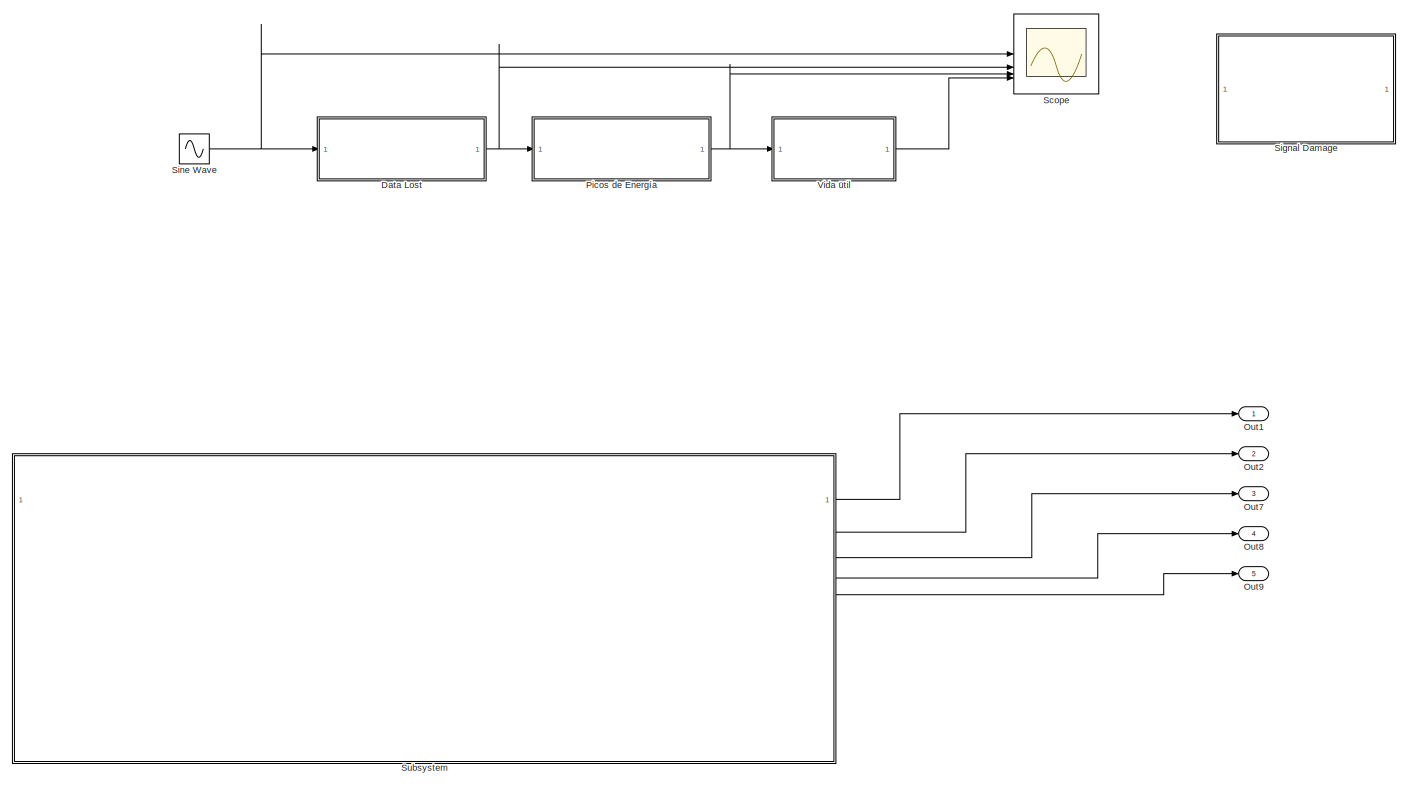
[diagram: root canvas - part 1/2, most of the canvas]
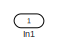
[diagram: root canvas - part 2/2, bottom left region]
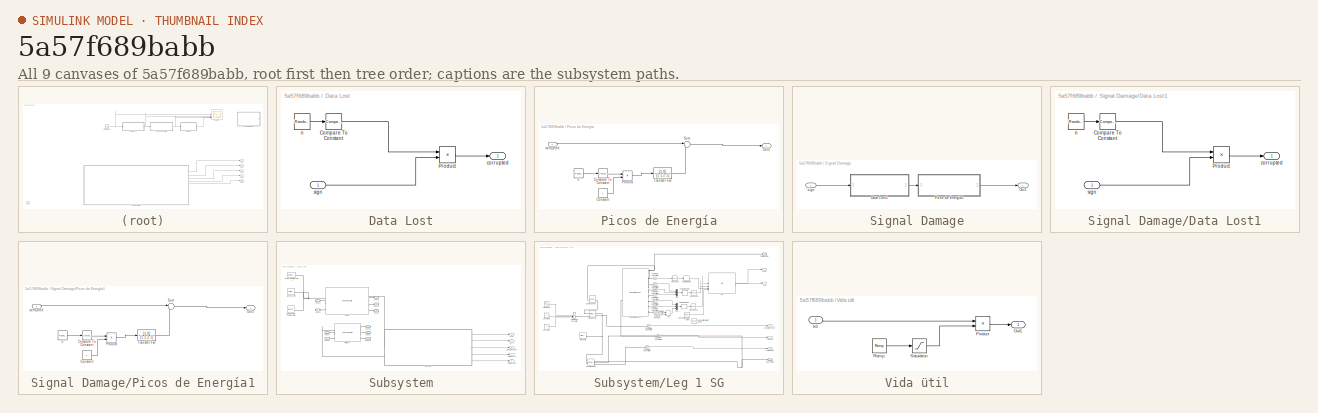
[diagram: thumbnail index - all 9 canvases of the model, root first then tree order]
MODEL mdl_5a57f689babb
KIND model
CONFIG AbsTol = auto
CONFIG EnableMultiTasking = off
CONFIG FixedStep = auto
CONFIG MaxStep = auto
CONFIG MinStep = auto
CONFIG RelTol = 1e-3
CONFIG SampleTimeConstraint = Unconstrained
CONFIG SolverName = VariableStepAuto
CONFIG StartTime = 0.0
CONFIG StopTime = 5
BLOCK [SubSystem] Data Lost
BLOCK [Reference] Data Lost/Compare To Constant  REF=simulink/Logic and Bit
Operations/Compare
To Constant
  SourceBlock = simulink/Logic and Bit\nOperations/Compare\nTo Constant
  SourceType = Compare To Constant
BLOCK [Product] Data Lost/Product
BLOCK [Outport] Data Lost/corrupted
BLOCK [RandomNumber] Data Lost/n
  SampleTime = 0.1
  Variance = 50
BLOCK [Inport] Data Lost/sign
BLOCK [Inport] In1
BLOCK [Outport] Out1
  SignalName = accel 1
BLOCK [Outport] Out2
  Port = 2
  SignalName = gyro 1
BLOCK [Outport] Out7
  Port = 3
  SignalName = lineal_encoder 1
BLOCK [Outport] Out8
  Port = 4
  SignalName = total_force 1
BLOCK [Outport] Out9
  Port = 5
  SignalName = total_torque 1
BLOCK [SubSystem] Picos de Energía
BLOCK [Reference] Picos de Energía/Compare To Constant  REF=simulink/Logic and Bit
Operations/Compare
To Constant
  SourceBlock = simulink/Logic and Bit\nOperations/Compare\nTo Constant
  SourceType = Compare To Constant
BLOCK [Constant] Picos de Energía/Constant
BLOCK [Outport] Picos de Energía/Out3
BLOCK [Product] Picos de Energía/Product
BLOCK [Sum] Picos de Energía/Sum
  Inputs = |++
BLOCK [TransferFcn] Picos de Energía/Transfer Fcn
  Denominator = [1 1.2 1]
  Numerator = [1 0]
BLOCK [Inport] Picos de Energía/corrupted
BLOCK [RandomNumber] Picos de Energía/n
  SampleTime = 0.1
  Variance = 50
BLOCK [Scope] Scope
  ActiveDisplayYMaximum = 1
  ActiveDisplayYMinimum = -1
  Floating = off
  GraphicalSettings = {"Style":{"BackgroundColor":[0.12941176470588237,0.12941176470588237,0.12941176470588237],"AxesColor":[0.07058823529411765,0.07058823529411765,0.07058823529411765],"LabelsColor":[0.8509803921568627,0.8509803921568627,0.8509803921568627],"PreserveColors":false,"Visible":[true,true,true,true],"LineStyle":["-","-","-","-"],"LineWidth":[1.5,1.5,1.5,1.5],"BarWidth":[0.9,0.9,0.9,0.9],"LineColor":["auto"...<+2398ch>
  MultipleDisplayCache = [{"MaxYLimMag":1,"MaxYLimReal":1,"MinYLimMag":0,"MinYLimReal":-1,"PlotAsMagnitudePhase":false,"ShowGrid":true,"ShowLegend":true,"Title":"%<SignalLabel>","YLabel":""}]
  NumInputPorts = 4
  ScopeFrameLocation = window
  ShowLegend = on
  WasSavedAsWebScope = on
  WindowPosition = [303.000000,177.000000,560.000000,420.000000,]
BLOCK [SubSystem] Signal Damage
BLOCK [SubSystem] Signal Damage/Data Lost1
BLOCK [Reference] Signal Damage/Data Lost1/Compare To Constant  REF=simulink/Logic and Bit
Operations/Compare
To Constant
  SourceBlock = simulink/Logic and Bit\nOperations/Compare\nTo Constant
  SourceType = Compare To Constant
BLOCK [Product] Signal Damage/Data Lost1/Product
BLOCK [Outport] Signal Damage/Data Lost1/corrupted
BLOCK [RandomNumber] Signal Damage/Data Lost1/n
  SampleTime = 0.1
  Variance = 50
BLOCK [Inport] Signal Damage/Data Lost1/sign
BLOCK [Outport] Signal Damage/Out1
BLOCK [SubSystem] Signal Damage/Picos de Energía1
BLOCK [Reference] Signal Damage/Picos de Energía1/Compare To Constant  REF=simulink/Logic and Bit
Operations/Compare
To Constant
  SourceBlock = simulink/Logic and Bit\nOperations/Compare\nTo Constant
  SourceType = Compare To Constant
BLOCK [Constant] Signal Damage/Picos de Energía1/Constant
BLOCK [Outport] Signal Damage/Picos de Energía1/Out3
BLOCK [Product] Signal Damage/Picos de Energía1/Product
BLOCK [Sum] Signal Damage/Picos de Energía1/Sum
  Inputs = |++
BLOCK [TransferFcn] Signal Damage/Picos de Energía1/Transfer Fcn
  Denominator = [1 1.2 1]
  Numerator = [1 0]
BLOCK [Inport] Signal Damage/Picos de Energía1/corrupted
BLOCK [RandomNumber] Signal Damage/Picos de Energía1/n
  SampleTime = 0.1
  Variance = 50
BLOCK [Inport] Signal Damage/sign
BLOCK [Sin] Sine Wave
  SampleTime = 0
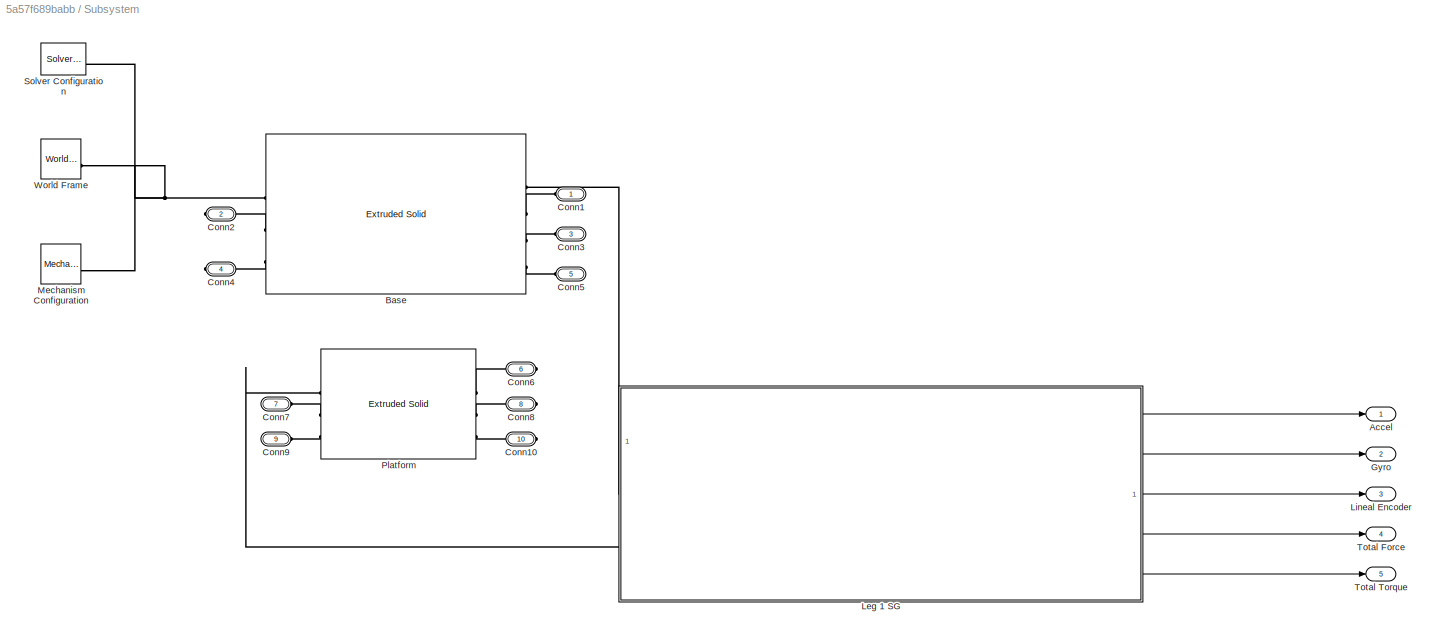
BLOCK [SubSystem] Subsystem
BLOCK [Outport] Subsystem/Accel
BLOCK [Reference] Subsystem/Base  REF=sm_lib/Body Elements/Extruded Solid
  SourceBlock = sm_lib/Body Elements/Extruded Solid
  SourceType = Extruded Solid
BLOCK [PMIOPort] Subsystem/Conn1
  Side = Left
BLOCK [PMIOPort] Subsystem/Conn10
  Port = 10
  Side = Right
BLOCK [PMIOPort] Subsystem/Conn2
  Port = 2
  Side = Right
BLOCK [PMIOPort] Subsystem/Conn3
  Port = 3
  Side = Left
BLOCK [PMIOPort] Subsystem/Conn4
  Port = 4
  Side = Right
BLOCK [PMIOPort] Subsystem/Conn5
  Port = 5
  Side = Left
BLOCK [PMIOPort] Subsystem/Conn6
  Port = 6
  Side = Right
BLOCK [PMIOPort] Subsystem/Conn7
  Port = 7
  Side = Left
BLOCK [PMIOPort] Subsystem/Conn8
  Port = 8
  Side = Right
BLOCK [PMIOPort] Subsystem/Conn9
  Port = 9
  Side = Left
BLOCK [Outport] Subsystem/Gyro
  Port = 2
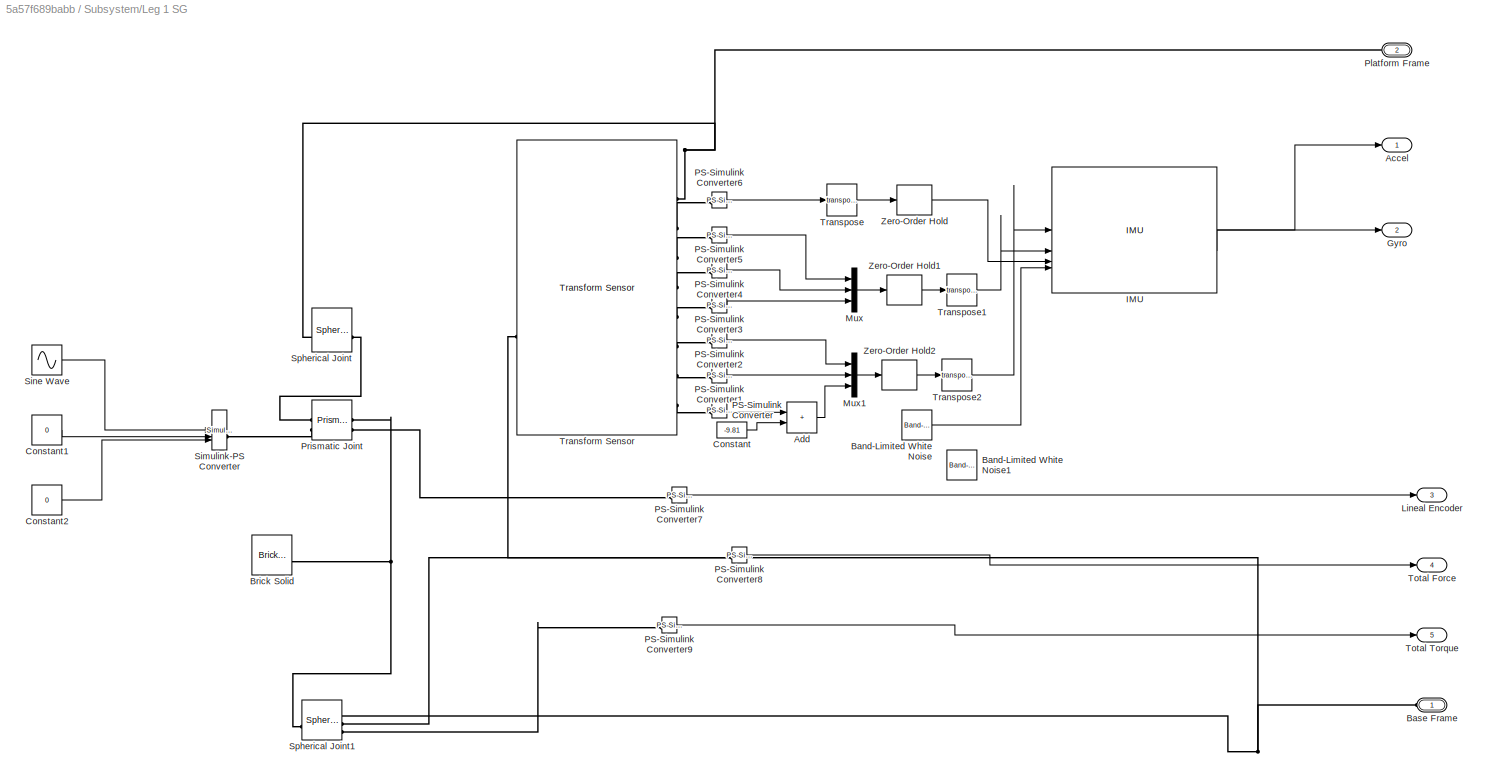
BLOCK [SubSystem] Subsystem/Leg 1 SG
BLOCK [Outport] Subsystem/Leg 1 SG/Accel
BLOCK [Sum] Subsystem/Leg 1 SG/Add
  IconShape = rectangular
BLOCK [Reference] Subsystem/Leg 1 SG/Band-Limited White Noise  REF=simulink/Sources/Band-Limited
White Noise
  SourceBlock = simulink/Sources/Band-Limited\nWhite Noise
  SourceType = Band-Limited White Noise.
BLOCK [Reference] Subsystem/Leg 1 SG/Band-Limited White Noise1  REF=simulink/Sources/Band-Limited
White Noise
  SourceBlock = simulink/Sources/Band-Limited\nWhite Noise
  SourceType = Band-Limited White Noise.
BLOCK [PMIOPort] Subsystem/Leg 1 SG/Base Frame
  NameLocation = top
  Side = Left
BLOCK [Reference] Subsystem/Leg 1 SG/Brick Solid  REF=sm_lib/Body Elements/Brick Solid
  SourceBlock = sm_lib/Body Elements/Brick Solid
  SourceType = Brick Solid
BLOCK [Constant] Subsystem/Leg 1 SG/Constant
  Value = -9.81
BLOCK [Constant] Subsystem/Leg 1 SG/Constant1
  Value = 0
BLOCK [Constant] Subsystem/Leg 1 SG/Constant2
  Value = 0
BLOCK [Outport] Subsystem/Leg 1 SG/Gyro
  Port = 2
BLOCK [Reference] Subsystem/Leg 1 SG/IMU  REF=mspsensorlib/IMU
  SourceBlock = mspsensorlib/IMU
  SourceType = fusion.simulink.imuSensor
BLOCK [Outport] Subsystem/Leg 1 SG/Lineal Encoder
  Port = 3
BLOCK [Mux] Subsystem/Leg 1 SG/Mux
  DisplayOption = bar
  Inputs = 3
BLOCK [Mux] Subsystem/Leg 1 SG/Mux1
  DisplayOption = bar
  Inputs = 3
BLOCK [Reference] Subsystem/Leg 1 SG/PS-Simulink Converter  REF=nesl_utility/PS-Simulink
Converter
  SourceBlock = nesl_utility/PS-Simulink\nConverter
  SourceType = PS-Simulink\nConverter
BLOCK [Reference] Subsystem/Leg 1 SG/PS-Simulink Converter1  REF=nesl_utility/PS-Simulink
Converter
  SourceBlock = nesl_utility/PS-Simulink\nConverter
  SourceType = PS-Simulink\nConverter
BLOCK [Reference] Subsystem/Leg 1 SG/PS-Simulink Converter2  REF=nesl_utility/PS-Simulink
Converter
  SourceBlock = nesl_utility/PS-Simulink\nConverter
  SourceType = PS-Simulink\nConverter
BLOCK [Reference] Subsystem/Leg 1 SG/PS-Simulink Converter3  REF=nesl_utility/PS-Simulink
Converter
  SourceBlock = nesl_utility/PS-Simulink\nConverter
  SourceType = PS-Simulink\nConverter
BLOCK [Reference] Subsystem/Leg 1 SG/PS-Simulink Converter4  REF=nesl_utility/PS-Simulink
Converter
  SourceBlock = nesl_utility/PS-Simulink\nConverter
  SourceType = PS-Simulink\nConverter
BLOCK [Reference] Subsystem/Leg 1 SG/PS-Simulink Converter5  REF=nesl_utility/PS-Simulink
Converter
  SourceBlock = nesl_utility/PS-Simulink\nConverter
  SourceType = PS-Simulink\nConverter
BLOCK [Reference] Subsystem/Leg 1 SG/PS-Simulink Converter6  REF=nesl_utility/PS-Simulink
Converter
  SourceBlock = nesl_utility/PS-Simulink\nConverter
  SourceType = PS-Simulink\nConverter
BLOCK [Reference] Subsystem/Leg 1 SG/PS-Simulink Converter7  REF=nesl_utility/PS-Simulink
Converter
  SourceBlock = nesl_utility/PS-Simulink\nConverter
  SourceType = PS-Simulink\nConverter
BLOCK [Reference] Subsystem/Leg 1 SG/PS-Simulink Converter8  REF=nesl_utility/PS-Simulink
Converter
  SourceBlock = nesl_utility/PS-Simulink\nConverter
  SourceType = PS-Simulink\nConverter
BLOCK [Reference] Subsystem/Leg 1 SG/PS-Simulink Converter9  REF=nesl_utility/PS-Simulink
Converter
  SourceBlock = nesl_utility/PS-Simulink\nConverter
  SourceType = PS-Simulink\nConverter
BLOCK [PMIOPort] Subsystem/Leg 1 SG/Platform Frame
  NameLocation = top
  Port = 2
  Side = Left
BLOCK [Reference] Subsystem/Leg 1 SG/Prismatic Joint  REF=sm_lib/Joints/Prismatic
Joint
  SourceBlock = sm_lib/Joints/Prismatic\nJoint
  SourceType = Prismatic\nJoint
BLOCK [Reference] Subsystem/Leg 1 SG/Simulink-PS Converter  REF=nesl_utility/Simulink-PS
Converter
  SourceBlock = nesl_utility/Simulink-PS\nConverter
  SourceType = Simulink-PS\nConverter
BLOCK [Sin] Subsystem/Leg 1 SG/Sine Wave
  SampleTime = 0
BLOCK [Reference] Subsystem/Leg 1 SG/Spherical Joint  REF=sm_lib/Joints/Spherical
Joint
  SourceBlock = sm_lib/Joints/Spherical\nJoint
  SourceType = Spherical\nJoint
BLOCK [Reference] Subsystem/Leg 1 SG/Spherical Joint1  REF=sm_lib/Joints/Spherical
Joint
  SourceBlock = sm_lib/Joints/Spherical\nJoint
  SourceType = Spherical\nJoint
BLOCK [Outport] Subsystem/Leg 1 SG/Total Force
  Port = 4
BLOCK [Outport] Subsystem/Leg 1 SG/Total Torque
  Port = 5
BLOCK [Reference] Subsystem/Leg 1 SG/Transform Sensor  REF=sm_lib/Frames and
Transforms/Transform
Sensor
  SourceBlock = sm_lib/Frames and\nTransforms/Transform\nSensor
  SourceType = Transform\nSensor
BLOCK [Math] Subsystem/Leg 1 SG/Transpose
  Operator = transpose
BLOCK [Math] Subsystem/Leg 1 SG/Transpose1
  Operator = transpose
BLOCK [Math] Subsystem/Leg 1 SG/Transpose2
  Operator = transpose
BLOCK [ZeroOrderHold] Subsystem/Leg 1 SG/Zero-Order Hold
  SampleTime = -1
BLOCK [ZeroOrderHold] Subsystem/Leg 1 SG/Zero-Order Hold1
  SampleTime = 1/6400
BLOCK [ZeroOrderHold] Subsystem/Leg 1 SG/Zero-Order Hold2
  SampleTime = 1/1600
BLOCK [Outport] Subsystem/Lineal Encoder
  Port = 3
BLOCK [Reference] Subsystem/Mechanism Configuration  REF=sm_lib/Utilities/Mechanism
Configuration
  SourceBlock = sm_lib/Utilities/Mechanism\nConfiguration
  SourceType = Mechanism\nConfiguration
BLOCK [Reference] Subsystem/Platform  REF=sm_lib/Body Elements/Extruded Solid
  SourceBlock = sm_lib/Body Elements/Extruded Solid
  SourceType = Extruded Solid
BLOCK [Reference] Subsystem/Solver Configuration  REF=nesl_utility/Solver
Configuration
  SourceBlock = nesl_utility/Solver\nConfiguration
  SourceType = Solver\nConfiguration
BLOCK [Outport] Subsystem/Total Force
  Port = 4
BLOCK [Outport] Subsystem/Total Torque
  Port = 5
BLOCK [Reference] Subsystem/World Frame  REF=sm_lib/Frames and
Transforms/World Frame
  SourceBlock = sm_lib/Frames and\nTransforms/World Frame
  SourceType = World Frame
BLOCK [SubSystem] Vida ütil
BLOCK [Inport] Vida ütil/In1
BLOCK [Outport] Vida ütil/Out1
BLOCK [Product] Vida ütil/Product
BLOCK [Reference] Vida ütil/Ramp  REF=simulink/Sources/Ramp
  SourceBlock = simulink/Sources/Ramp
  SourceType = Ramp
BLOCK [Saturate] Vida ütil/Saturation
  LowerLimit = 0
  UpperLimit = inf
LINE Data Lost/Compare To Constant:1 -> Data Lost/Product:1
LINE Data Lost/Product:1 -> Data Lost/corrupted:1
LINE Data Lost/n:1 -> Data Lost/Compare To Constant:1
LINE Data Lost/sign:1 -> Data Lost/Product:2
NET Data Lost:1 -> Picos de Energía:1, Scope:2
LINE Picos de Energía/Compare To Constant:1 -> Picos de Energía/Product:1
LINE Picos de Energía/Constant:1 -> Picos de Energía/Product:2
LINE Picos de Energía/Product:1 -> Picos de Energía/Transfer Fcn:1
LINE Picos de Energía/Sum:1 -> Picos de Energía/Out3:1
LINE Picos de Energía/Transfer Fcn:1 -> Picos de Energía/Sum:2
LINE Picos de Energía/corrupted:1 -> Picos de Energía/Sum:1
LINE Picos de Energía/n:1 -> Picos de Energía/Compare To Constant:1
NET Picos de Energía:1 -> Scope:3, Vida ütil:1
LINE Signal Damage/Data Lost1/Compare To Constant:1 -> Signal Damage/Data Lost1/Product:1
LINE Signal Damage/Data Lost1/Product:1 -> Signal Damage/Data Lost1/corrupted:1
LINE Signal Damage/Data Lost1/n:1 -> Signal Damage/Data Lost1/Compare To Constant:1
LINE Signal Damage/Data Lost1/sign:1 -> Signal Damage/Data Lost1/Product:2
LINE Signal Damage/Data Lost1:1 -> Signal Damage/Picos de Energía1:1
LINE Signal Damage/Picos de Energía1/Compare To Constant:1 -> Signal Damage/Picos de Energía1/Product:1
LINE Signal Damage/Picos de Energía1/Constant:1 -> Signal Damage/Picos de Energía1/Product:2
LINE Signal Damage/Picos de Energía1/Product:1 -> Signal Damage/Picos de Energía1/Transfer Fcn:1
LINE Signal Damage/Picos de Energía1/Sum:1 -> Signal Damage/Picos de Energía1/Out3:1
LINE Signal Damage/Picos de Energía1/Transfer Fcn:1 -> Signal Damage/Picos de Energía1/Sum:2
LINE Signal Damage/Picos de Energía1/corrupted:1 -> Signal Damage/Picos de Energía1/Sum:1
LINE Signal Damage/Picos de Energía1/n:1 -> Signal Damage/Picos de Energía1/Compare To Constant:1
LINE Signal Damage/Picos de Energía1:1 -> Signal Damage/Out1:1
LINE Signal Damage/sign:1 -> Signal Damage/Data Lost1:1
NET Sine Wave:1 -> Data Lost:1, Scope:1
LINE Subsystem/Leg 1 SG/Add:1 -> Subsystem/Leg 1 SG/Mux1:3
LINE Subsystem/Leg 1 SG/Band-Limited White Noise:1 -> Subsystem/Leg 1 SG/IMU:4
LINE Subsystem/Leg 1 SG/Constant1:1 -> Subsystem/Leg 1 SG/Simulink-PS Converter:2
LINE Subsystem/Leg 1 SG/Constant2:1 -> Subsystem/Leg 1 SG/Simulink-PS Converter:3
LINE Subsystem/Leg 1 SG/Constant:1 -> Subsystem/Leg 1 SG/Add:2
LINE Subsystem/Leg 1 SG/IMU:1 -> Subsystem/Leg 1 SG/Accel:1
LINE Subsystem/Leg 1 SG/IMU:2 -> Subsystem/Leg 1 SG/Gyro:1
LINE Subsystem/Leg 1 SG/Mux1:1 -> Subsystem/Leg 1 SG/Zero-Order Hold2:1
LINE Subsystem/Leg 1 SG/Mux:1 -> Subsystem/Leg 1 SG/Zero-Order Hold1:1
LINE Subsystem/Leg 1 SG/PS-Simulink Converter1:1 -> Subsystem/Leg 1 SG/Mux1:2
LINE Subsystem/Leg 1 SG/PS-Simulink Converter2:1 -> Subsystem/Leg 1 SG/Mux1:1
LINE Subsystem/Leg 1 SG/PS-Simulink Converter3:1 -> Subsystem/Leg 1 SG/Mux:3
LINE Subsystem/Leg 1 SG/PS-Simulink Converter4:1 -> Subsystem/Leg 1 SG/Mux:2
LINE Subsystem/Leg 1 SG/PS-Simulink Converter5:1 -> Subsystem/Leg 1 SG/Mux:1
LINE Subsystem/Leg 1 SG/PS-Simulink Converter6:1 -> Subsystem/Leg 1 SG/Transpose:1
LINE Subsystem/Leg 1 SG/PS-Simulink Converter7:1 -> Subsystem/Leg 1 SG/Lineal Encoder:1
LINE Subsystem/Leg 1 SG/PS-Simulink Converter8:1 -> Subsystem/Leg 1 SG/Total Force:1
LINE Subsystem/Leg 1 SG/PS-Simulink Converter9:1 -> Subsystem/Leg 1 SG/Total Torque:1
LINE Subsystem/Leg 1 SG/PS-Simulink Converter:1 -> Subsystem/Leg 1 SG/Add:1
LINE Subsystem/Leg 1 SG/Sine Wave:1 -> Subsystem/Leg 1 SG/Simulink-PS Converter:1
LINE Subsystem/Leg 1 SG/Transpose1:1 -> Subsystem/Leg 1 SG/IMU:2
LINE Subsystem/Leg 1 SG/Transpose2:1 -> Subsystem/Leg 1 SG/IMU:1
LINE Subsystem/Leg 1 SG/Transpose:1 -> Subsystem/Leg 1 SG/Zero-Order Hold:1
LINE Subsystem/Leg 1 SG/Zero-Order Hold1:1 -> Subsystem/Leg 1 SG/Transpose1:1
LINE Subsystem/Leg 1 SG/Zero-Order Hold2:1 -> Subsystem/Leg 1 SG/Transpose2:1
LINE Subsystem/Leg 1 SG/Zero-Order Hold:1 -> Subsystem/Leg 1 SG/IMU:3
LINE Subsystem/Leg 1 SG:1 -> Subsystem/Accel:1
LINE Subsystem/Leg 1 SG:2 -> Subsystem/Gyro:1
LINE Subsystem/Leg 1 SG:3 -> Subsystem/Lineal Encoder:1
LINE Subsystem/Leg 1 SG:4 -> Subsystem/Total Force:1
LINE Subsystem/Leg 1 SG:5 -> Subsystem/Total Torque:1
LINE Subsystem:1 -> Out1:1
LINE Subsystem:2 -> Out2:1
LINE Subsystem:3 -> Out7:1
LINE Subsystem:4 -> Out8:1
LINE Subsystem:5 -> Out9:1
LINE Vida ütil/In1:1 -> Vida ütil/Product:1
LINE Vida ütil/Product:1 -> Vida ütil/Out1:1
LINE Vida ütil/Ramp:1 -> Vida ütil/Saturation:1
LINE Vida ütil/Saturation:1 -> Vida ütil/Product:2
LINE Vida ütil:1 -> Scope:4
PLINE Subsystem/Base:LConn1 -- Subsystem/Leg 1 SG:LConn1
PLINE Subsystem/Base:LConn2 -- Subsystem/Conn1:RConn1
PLINE Subsystem/Base:LConn3 -- Subsystem/Conn3:RConn1
PLINE Subsystem/Base:LConn4 -- Subsystem/Conn5:RConn1
PNET net1: Subsystem/Base:RConn1 -- Subsystem/Mechanism Configuration:RConn1 -- Subsystem/Solver Configuration:RConn1 -- Subsystem/World Frame:RConn1
PLINE Subsystem/Base:RConn2 -- Subsystem/Conn2:RConn1
PLINE Subsystem/Base:RConn3 -- Subsystem/Conn4:RConn1
PLINE Subsystem/Conn10:RConn1 -- Subsystem/Platform:RConn3
PLINE Subsystem/Conn6:RConn1 -- Subsystem/Platform:RConn1
PLINE Subsystem/Conn7:RConn1 -- Subsystem/Platform:LConn2
PLINE Subsystem/Conn8:RConn1 -- Subsystem/Platform:RConn2
PLINE Subsystem/Conn9:RConn1 -- Subsystem/Platform:LConn3
PNET net2: Subsystem/Leg 1 SG/Base Frame:RConn1 -- Subsystem/Leg 1 SG/Spherical Joint1:RConn1 -- Subsystem/Leg 1 SG/Transform Sensor:LConn1
PNET net3: Subsystem/Leg 1 SG/Brick Solid:RConn1 -- Subsystem/Leg 1 SG/Prismatic Joint:RConn1 -- Subsystem/Leg 1 SG/Spherical Joint1:LConn1
PLINE Subsystem/Leg 1 SG/PS-Simulink Converter1:LConn1 -- Subsystem/Leg 1 SG/Transform Sensor:RConn7
PLINE Subsystem/Leg 1 SG/PS-Simulink Converter2:LConn1 -- Subsystem/Leg 1 SG/Transform Sensor:RConn6
PLINE Subsystem/Leg 1 SG/PS-Simulink Converter3:LConn1 -- Subsystem/Leg 1 SG/Transform Sensor:RConn5
PLINE Subsystem/Leg 1 SG/PS-Simulink Converter4:LConn1 -- Subsystem/Leg 1 SG/Transform Sensor:RConn4
PLINE Subsystem/Leg 1 SG/PS-Simulink Converter5:LConn1 -- Subsystem/Leg 1 SG/Transform Sensor:RConn3
PLINE Subsystem/Leg 1 SG/PS-Simulink Converter6:LConn1 -- Subsystem/Leg 1 SG/Transform Sensor:RConn2
PLINE Subsystem/Leg 1 SG/PS-Simulink Converter7:LConn1 -- Subsystem/Leg 1 SG/Prismatic Joint:RConn2
PLINE Subsystem/Leg 1 SG/PS-Simulink Converter8:LConn1 -- Subsystem/Leg 1 SG/Spherical Joint1:RConn2
PLINE Subsystem/Leg 1 SG/PS-Simulink Converter9:LConn1 -- Subsystem/Leg 1 SG/Spherical Joint1:RConn3
PLINE Subsystem/Leg 1 SG/PS-Simulink Converter:LConn1 -- Subsystem/Leg 1 SG/Transform Sensor:RConn8
PNET net4: Subsystem/Leg 1 SG/Platform Frame:RConn1 -- Subsystem/Leg 1 SG/Spherical Joint:LConn1 -- Subsystem/Leg 1 SG/Transform Sensor:RConn1
PLINE Subsystem/Leg 1 SG/Prismatic Joint:LConn1 -- Subsystem/Leg 1 SG/Spherical Joint:RConn1
PLINE Subsystem/Leg 1 SG/Prismatic Joint:LConn2 -- Subsystem/Leg 1 SG/Simulink-PS Converter:RConn1
PLINE Subsystem/Leg 1 SG:LConn2 -- Subsystem/Platform:LConn1
note: NET lines group one-source signal fan-out (src -> all destinations, sorted); 1:1 wires keep LINE; PNET lines group multi-terminal physical nets as a canonical sorted terminal list (undirected conserving connections); 2-terminal nets keep the pairwise PLINE form
